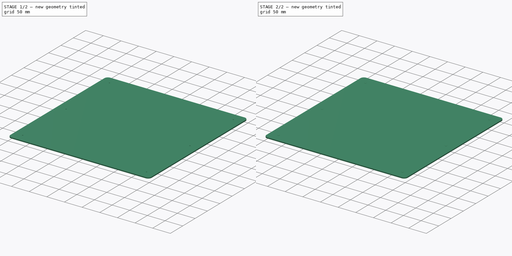
[diagram: build sequence overview — one tinted view per stage of 2, left to right]
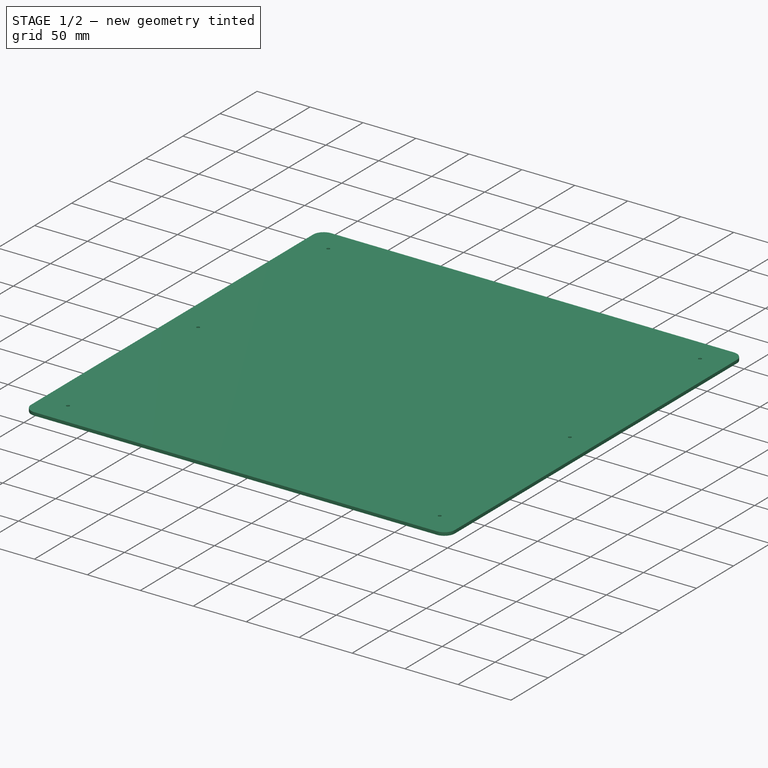
[diagram: stage 1 of 2 — iso view after this stage's code; geometry added in this stage tinted green]
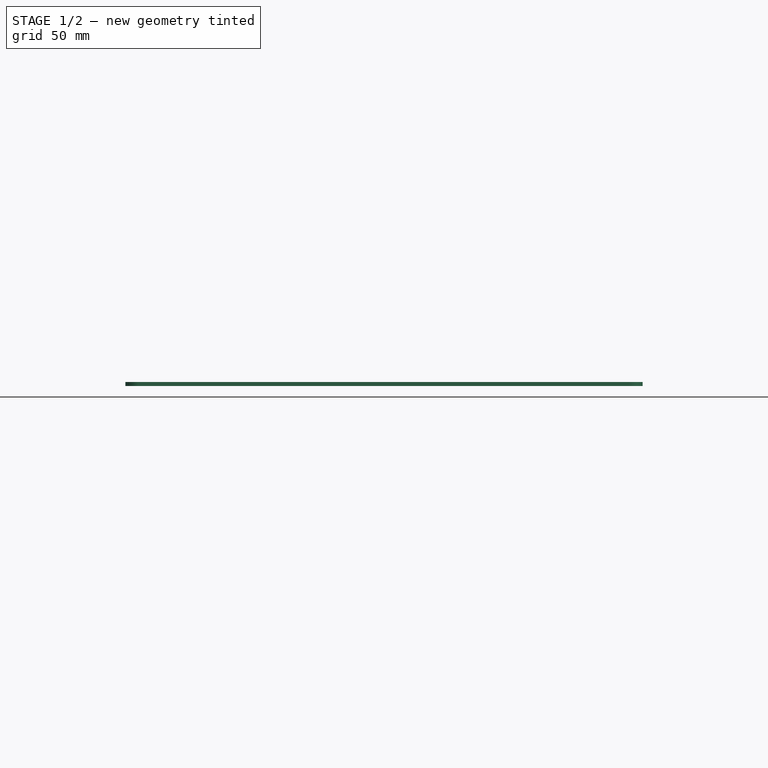
[diagram: stage 1 of 2 — front view after this stage's code; geometry added in this stage tinted green]
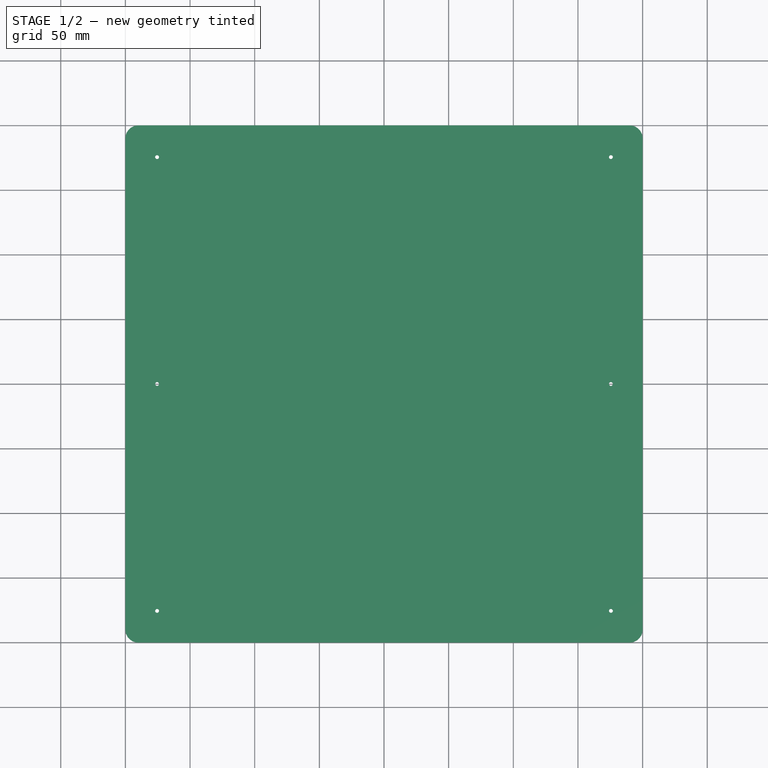
[diagram: stage 1 of 2 — top view after this stage's code; geometry added in this stage tinted green]
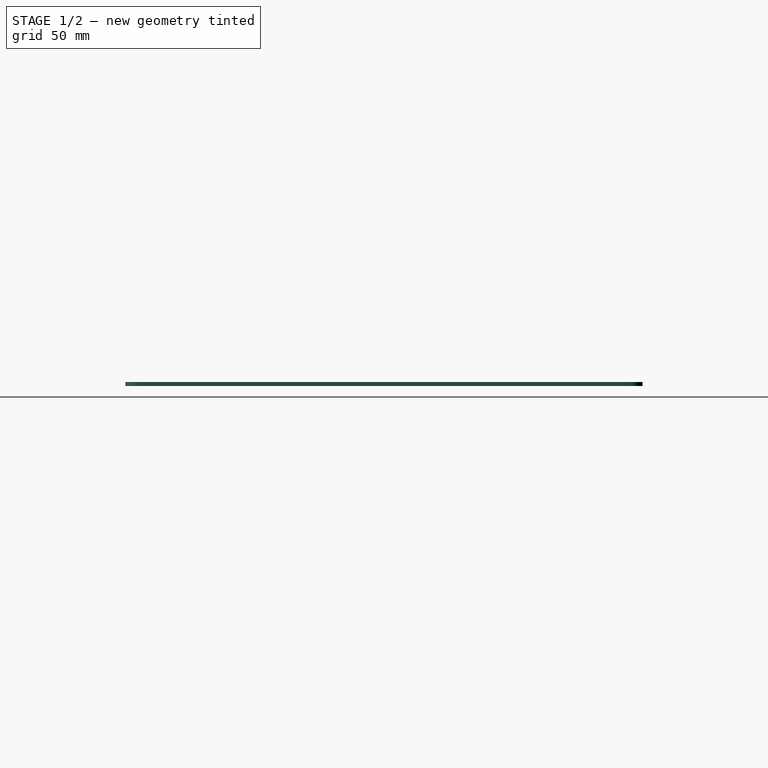
[diagram: stage 1 of 2 — right view after this stage's code; geometry added in this stage tinted green]
FCSTD DOCUMENT  (FreeCAD 0.21R33771 (Git))
Label: printPlate
License: All rights reserved
LicenseURL: http://en.wikipedia.org/wiki/All_rights_reserved
objects: Sketcher::SketchObject×1, PartDesign::Pad×1, PartDesign::Fillet×1, PartDesign::Chamfer×1, PartDesign::Body×1
note: 8 computed .brp shape members not serialized (recipe doc carries the construction recipe); baked Part::Feature solids carry a one-line shape summary decoded from their .brp

FEATURE [Sketcher::SketchObject] Sketch
  FullyConstrained = true
  MapMode = 5
  Support = -> [XY_Plane]
  sketch-geometry (22):
    g0: LineSegment StartX=0 StartY=0 StartZ=0 EndX=400 EndY=0 EndZ=0
    g1: LineSegment StartX=400 StartY=0 StartZ=0 EndX=400 EndY=400 EndZ=0
    g2: LineSegment StartX=400 StartY=400 StartZ=0 EndX=0 EndY=400 EndZ=0
    g3: LineSegment StartX=0 StartY=400 StartZ=0 EndX=0 EndY=0 EndZ=0
    g4: LineSegment StartX=24.5 StartY=375.5 StartZ=0 EndX=375.5 EndY=375.5 EndZ=0
    g5: LineSegment StartX=375.5 StartY=375.5 StartZ=0 EndX=375.5 EndY=24.5 EndZ=0
    g6: LineSegment StartX=375.5 StartY=24.5 StartZ=0 EndX=24.5 EndY=24.5 EndZ=0
    g7: LineSegment StartX=24.5 StartY=24.5 StartZ=0 EndX=24.5 EndY=375.5 EndZ=0
    g8: LineSegment StartX=0 StartY=0 StartZ=0 EndX=24.5 EndY=0 EndZ=0
    g9: LineSegment StartX=24.5 StartY=0 StartZ=0 EndX=24.5 EndY=24.5 EndZ=0
    g10: LineSegment StartX=24.5 StartY=24.5 StartZ=0 EndX=0 EndY=24.5 EndZ=0
    g11: LineSegment StartX=0 StartY=24.5 StartZ=0 EndX=0 EndY=0 EndZ=0
    g12: LineSegment StartX=400 StartY=400 StartZ=0 EndX=375.5 EndY=400 EndZ=0
    g13: LineSegment StartX=375.5 StartY=400 StartZ=0 EndX=375.5 EndY=375.5 EndZ=0
    g14: LineSegment StartX=375.5 StartY=375.5 StartZ=0 EndX=400 EndY=375.5 EndZ=0
    g15: LineSegment StartX=400 StartY=375.5 StartZ=0 EndX=400 EndY=400 EndZ=0
    g16: Circle CenterX=24.5 CenterY=375.5 CenterZ=0 NormalX=0 NormalY=0 NormalZ=1 AngleXU=0 Radius=1.5
    g17: Circle CenterX=24.5 CenterY=24.5 CenterZ=0 NormalX=0 NormalY=0 NormalZ=1 AngleXU=0 Radius=1.5
    g18: Circle CenterX=375.5 CenterY=24.5 CenterZ=0 NormalX=0 NormalY=0 NormalZ=1 AngleXU=0 Radius=1.5
    g19: Circle CenterX=375.5 CenterY=375.5 CenterZ=0 NormalX=0 NormalY=0 NormalZ=1 AngleXU=0 Radius=1.5
    g20: Circle CenterX=24.5 CenterY=200 CenterZ=0 NormalX=0 NormalY=0 NormalZ=1 AngleXU=0 Radius=1.5
    g21: Circle CenterX=375.5 CenterY=200 CenterZ=0 NormalX=0 NormalY=0 NormalZ=1 AngleXU=0 Radius=1.5
  constraints (57):
    c: Coincident(g0,g1)
    c: Coincident(g1,g2)
    c: Coincident(g2,g3)
    c: Coincident(g3,g0)
    c: Horizontal(g0)
    c: Horizontal(g2)
    c: Vertical(g1)
    c: Vertical(g3)
    c: Coincident(g0,g-1)
    c: Distance(g0) = 400
    c: Distance(g3) = 400
    c: Coincident(g4,g5)
    c: Coincident(g5,g6)
    c: Coincident(g6,g7)
    c: Coincident(g7,g4)
    c: Horizontal(g4)
    c: Horizontal(g6)
    c: Vertical(g5)
    c: Vertical(g7)
    c: Coincident(g8,g9)
    c: Coincident(g9,g10)
    c: Coincident(g10,g11)
    c: Coincident(g11,g8)
    c: Horizontal(g8)
    c: Horizontal(g10)
    c: Vertical(g9)
    c: Vertical(g11)
    c: Coincident(g8,g0)
    c: Coincident(g9,g6)
    c: Coincident(g12,g13)
    c: Coincident(g13,g14)
    c: Coincident(g14,g15)
    c: Coincident(g15,g12)
    c: Horizontal(g12)
    c: Horizontal(g14)
    c: Vertical(g13)
    c: Vertical(g15)
    c: Coincident(g12,g1)
    c: Coincident(g13,g4)
    c: Equal(g14,g13)
    c: Equal(g13,g10)
    c: Equal(g10,g9)
    c: Distance(g14) = 24.5
    c: Coincident(g16,g4)
    c: Coincident(g17,g6)
    c: Coincident(g18,g5)
    c: Coincident(g19,g4)
    c: Equal(g16,g17)
    c: Equal(g17,g18)
    c: Equal(g18,g19)
    c: Diameter(g16) = 3
    c: PointOnObject(g20,g7)
    c: PointOnObject(g21,g5)
    c: Equal(g18,g21)
    c: Equal(g21,g20)
    c: Distance(g20,g0) = 200
    c: Distance(g21,g0) = 200
FEATURE [PartDesign::Pad] Pad
  Direction = (0,0,1)
  Length = 3
  Length2 = 10
  Profile = -> Sketch
  ReferenceAxis = -> Sketch [N_Axis]
  Refine = true
  Type = 0
FEATURE [PartDesign::Fillet] Fillet
  Base = -> Pad [Edge1,Edge2,Edge5,Edge8]
  BaseFeature = -> Pad
  Radius = 10
  Refine = true
  SupportTransform = false
  UseAllEdges = false
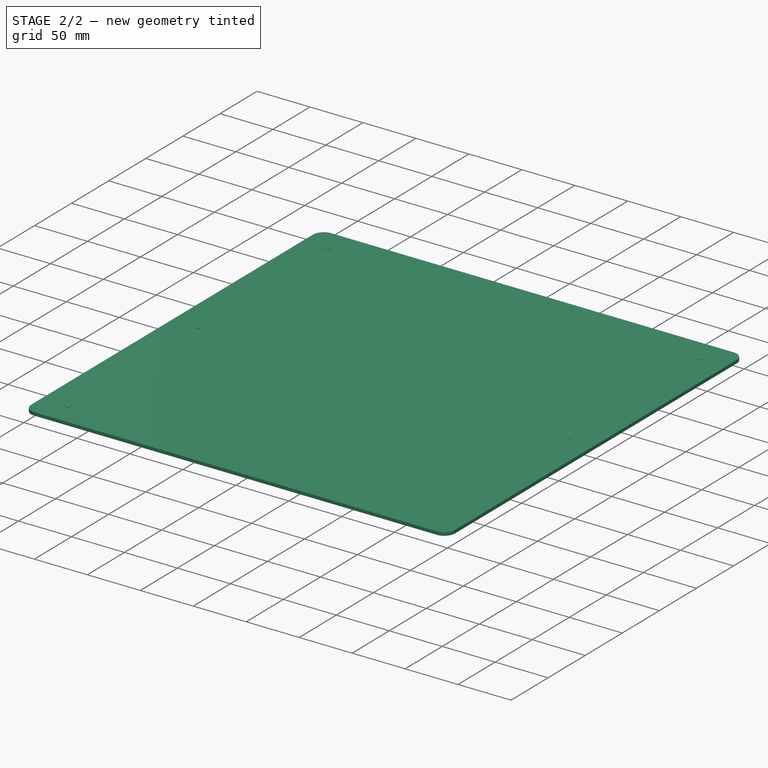
[diagram: stage 2 of 2 — iso view after this stage's code; geometry added in this stage tinted green]
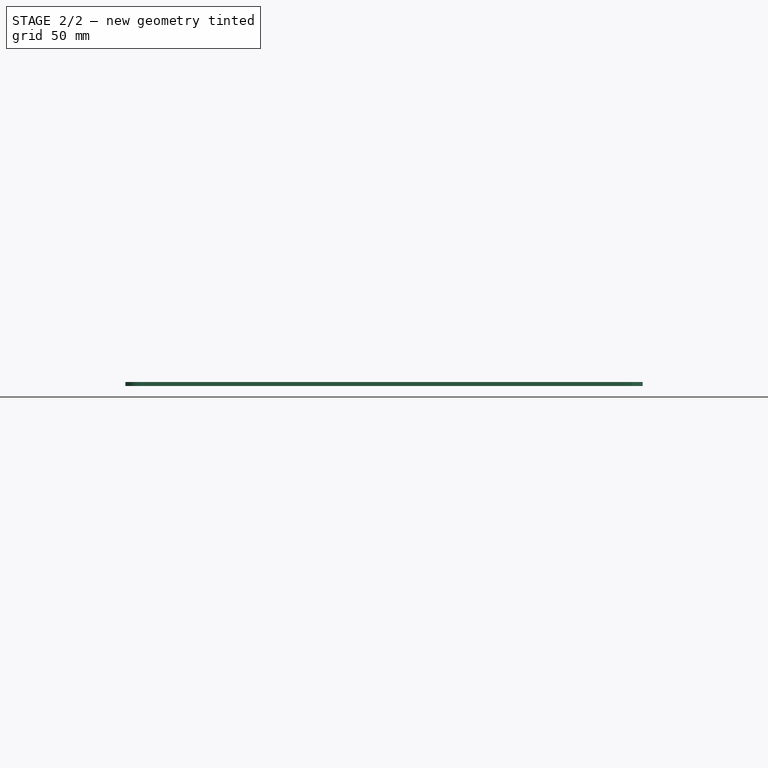
[diagram: stage 2 of 2 — front view after this stage's code; geometry added in this stage tinted green]
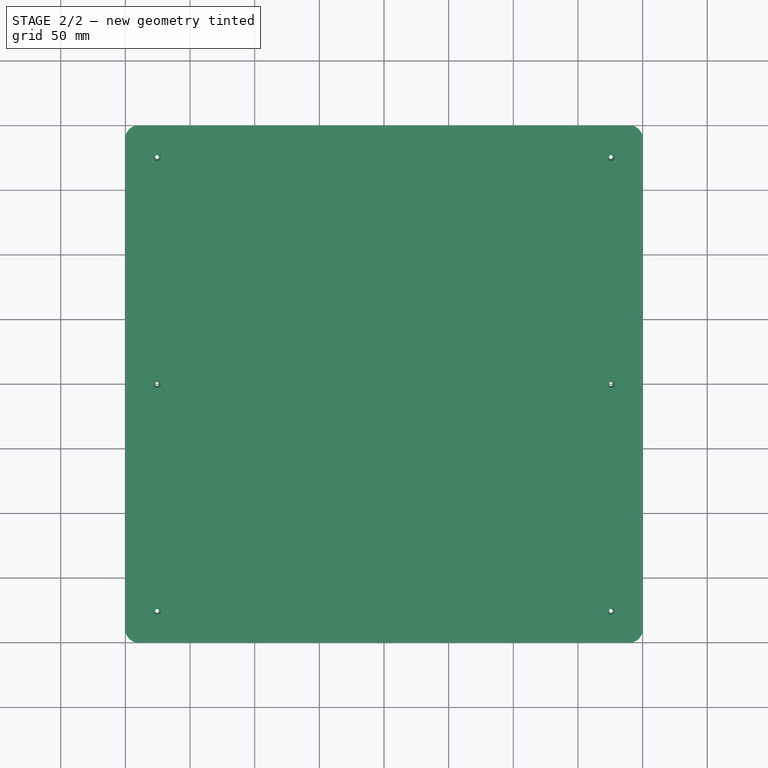
[diagram: stage 2 of 2 — top view after this stage's code; geometry added in this stage tinted green]
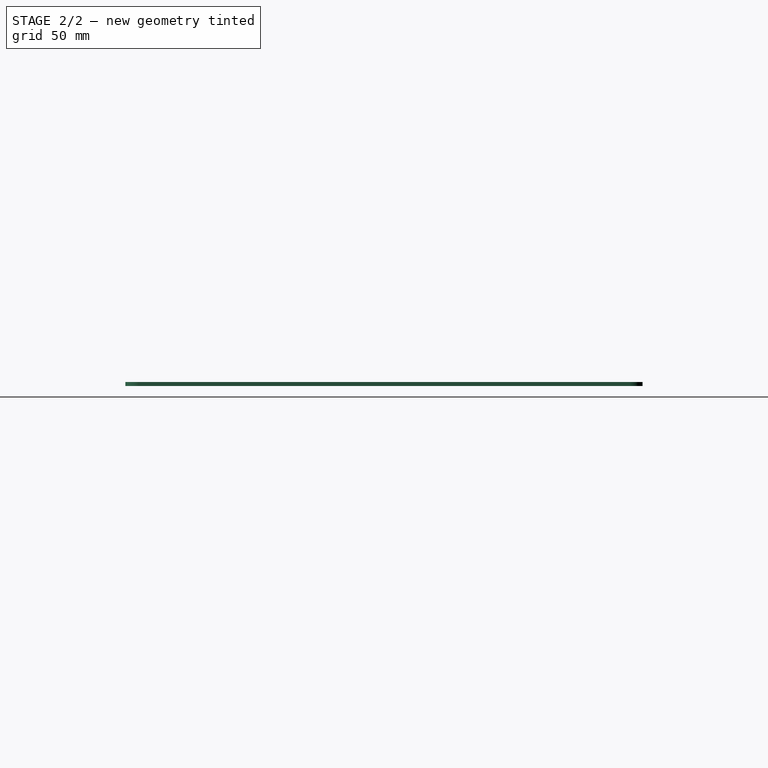
[diagram: stage 2 of 2 — right view after this stage's code; geometry added in this stage tinted green]
FEATURE [PartDesign::Chamfer] Chamfer
  Angle = 45
  Base = -> Fillet [Edge28,Edge32,Edge31,Edge27,Edge29,Edge30]
  BaseFeature = -> Fillet
  ChamferType = 0
  FlipDirection = false
  Refine = true
  Size = 1.5
  Size2 = 1
  SupportTransform = false
  UseAllEdges = false
FEATURE [PartDesign::Body] Body
  Group = -> [Sketch,Pad,Fillet,Chamfer]
  Origin = -> Origin
  Tip = -> Chamfer
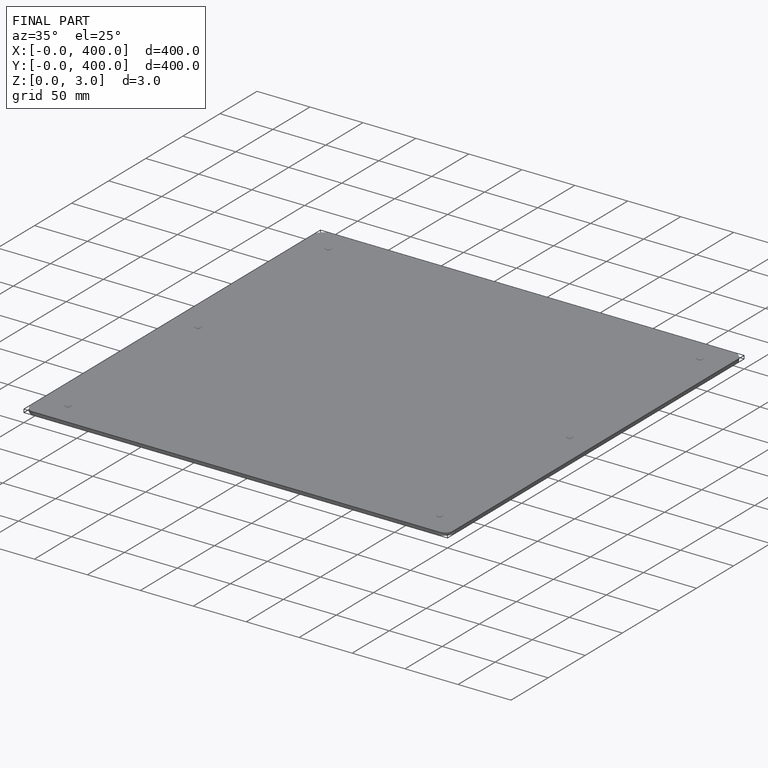
[diagram: finished part — iso view with bounding-box wireframe]
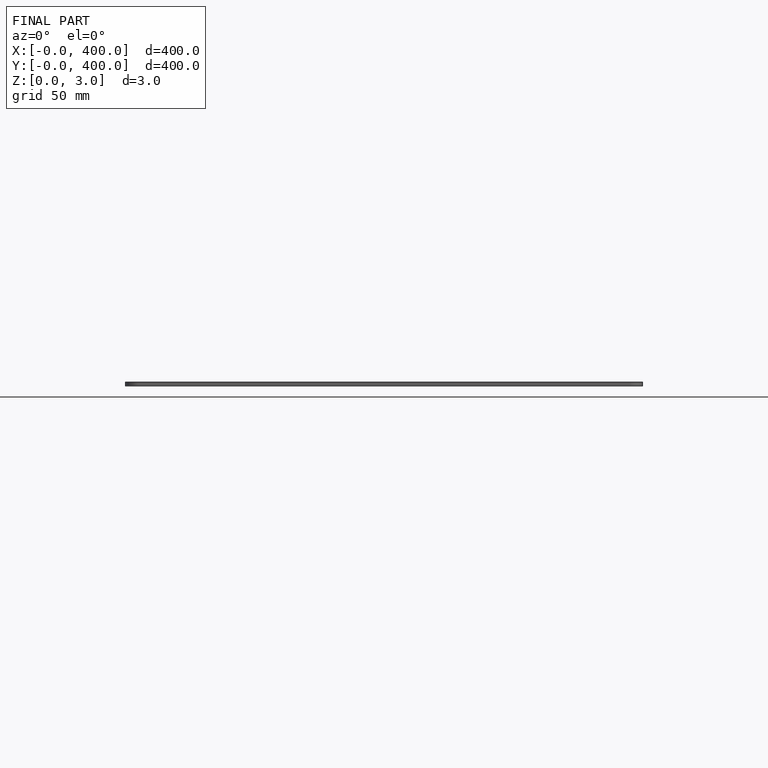
[diagram: finished part — front view with bounding-box wireframe]
